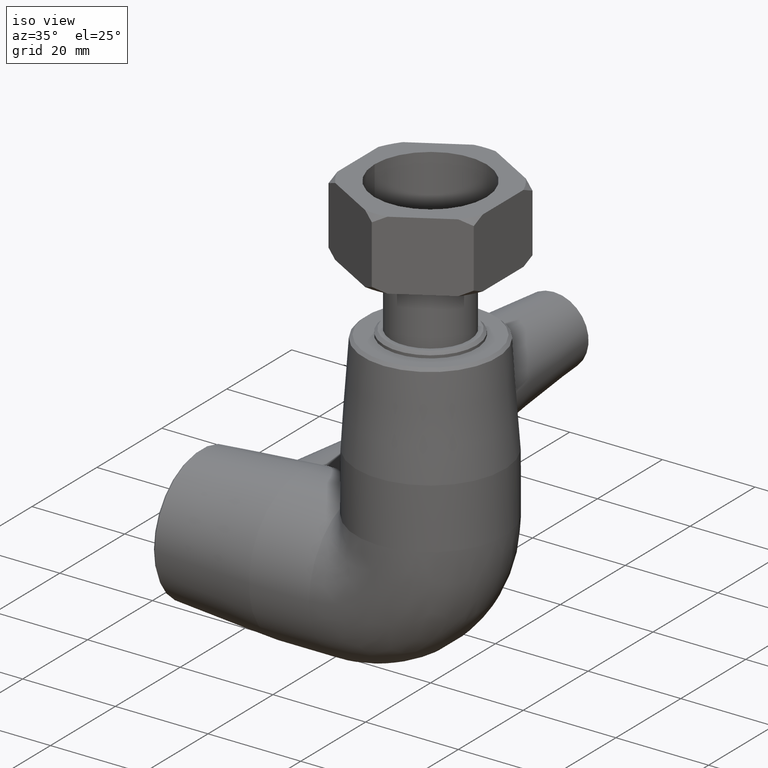
[diagram: clean part render]
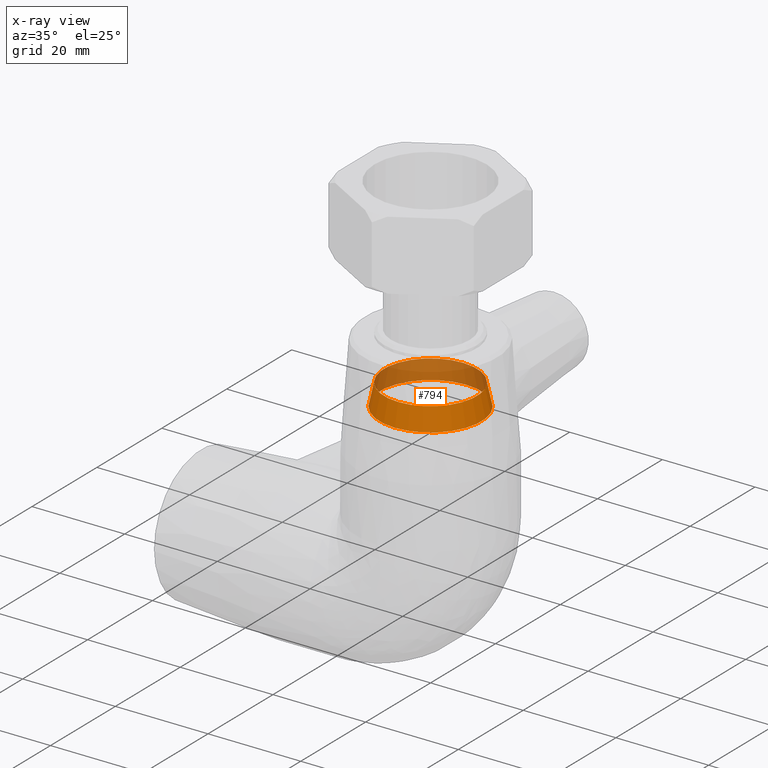
[diagram: x-ray — body ghosted, one internal face saturated and labeled with its STEP entity id]
A machine part, iso view, then the same camera in x-ray: the body is ghosted and one INTERNAL B-rep face — a face not visible from any outside direction — is saturated and labeled: STEP entity #794.
In plain terms, the highlighted conical surface has half-angle 12 deg.
Its self-contained STEP definition (entity closure, byte-faithful):
#121=FACE_BOUND('',#225,.T.);
#161=FACE_OUTER_BOUND('',#224,.T.);
#224=EDGE_LOOP('',(#564));
#225=EDGE_LOOP('',(#565));
#327=CIRCLE('',#862,10.);
#328=CIRCLE('',#863,10.9919306211268);
#381=VERTEX_POINT('',#1234);
#382=VERTEX_POINT('',#1236);
#461=EDGE_CURVE('',#381,#381,#327,.T.);
#462=EDGE_CURVE('',#382,#382,#328,.T.);
#564=ORIENTED_EDGE('',*,*,#461,.F.);
#565=ORIENTED_EDGE('',*,*,#462,.T.);
#770=CONICAL_SURFACE('',#861,10.4959653105634,12.);
#794=ADVANCED_FACE('',(#161,#121),#770,.F.);
#861=AXIS2_PLACEMENT_3D('',#1233,#980,#981);
#862=AXIS2_PLACEMENT_3D('',#1235,#982,#983);
#863=AXIS2_PLACEMENT_3D('',#1237,#984,#985);
#980=DIRECTION('center_axis',(6.12323399573677E-17,-2.77555756156289E-18,
-1.));
#981=DIRECTION('ref_axis',(0.,1.,0.));
#982=DIRECTION('center_axis',(6.12323399573677E-17,-2.77555756156289E-18,
-1.));
#983=DIRECTION('ref_axis',(-1.,0.,-6.12323399573677E-17));
#984=DIRECTION('center_axis',(6.12323399573677E-17,-2.77555756156289E-18,
-1.));
#985=DIRECTION('ref_axis',(-1.,0.,-6.12323399573677E-17));
#1233=CARTESIAN_POINT('Origin',(-2.34723969836576E-15,-3.23815048849004E-17,
38.3333333333334));
#1234=CARTESIAN_POINT('',(-2.49011515826629E-15,10.,40.6666666666667));
#1235=CARTESIAN_POINT('Origin',(-2.49011515826629E-15,-2.59052039079203E-17,
40.6666666666667));
#1236=CARTESIAN_POINT('',(-2.20436423846524E-15,10.9919306211268,36.));
#1237=CARTESIAN_POINT('Origin',(-2.20436423846524E-15,-3.88578058618805E-17,
36.));